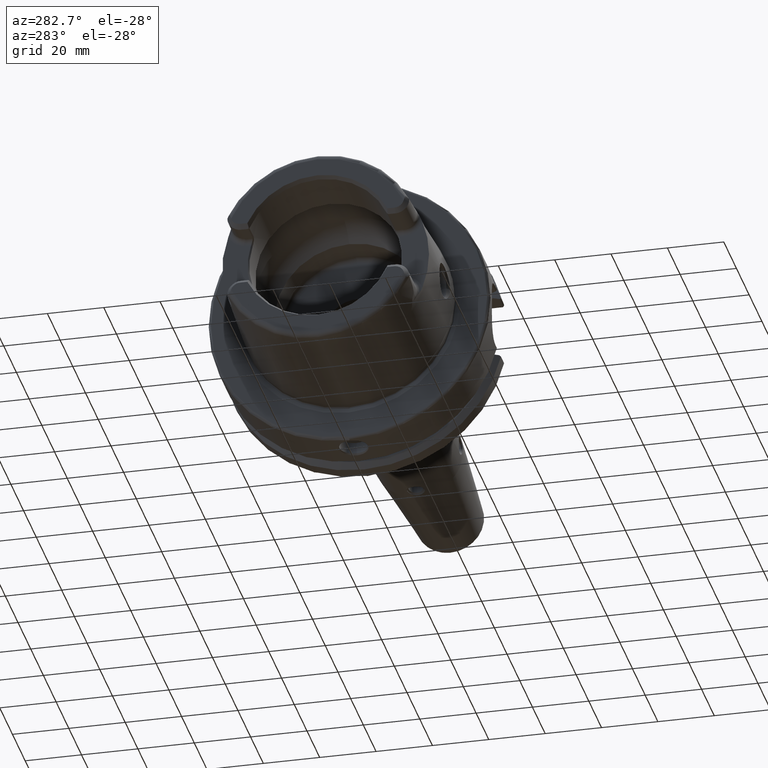
[diagram: clean part render]
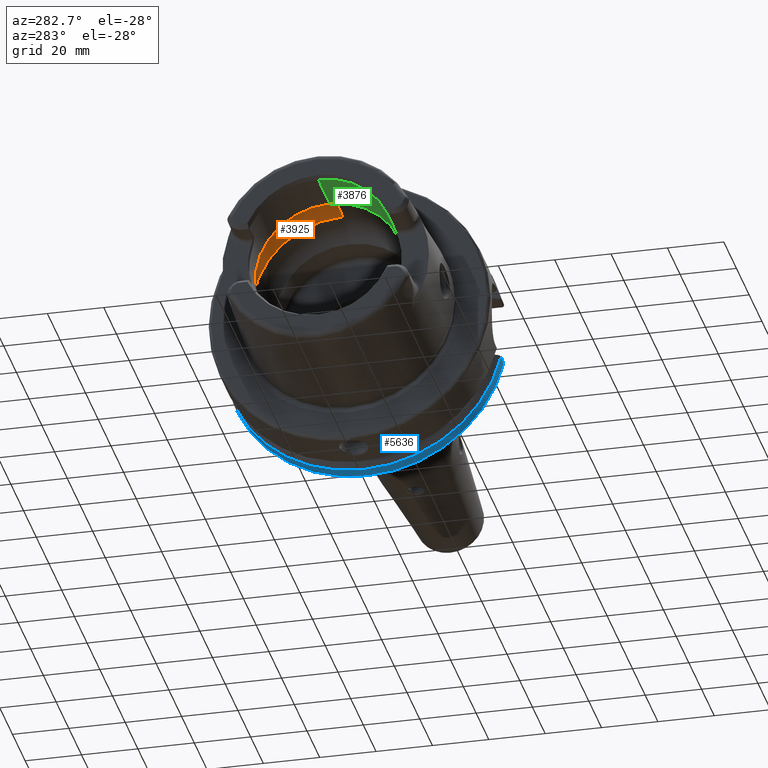
[diagram: same view with three faces highlighted in distinct colors, each labeled with its STEP entity id]
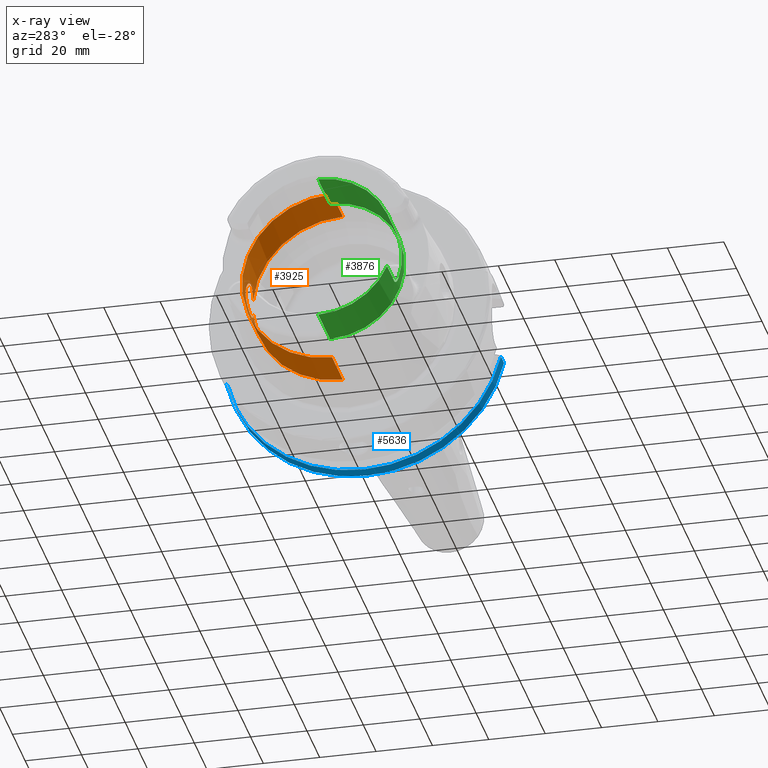
[diagram: x-ray of the same camera — body ghosted, the three highlighted faces saturated]
A machine part, auxiliary view with three faces highlighted in distinct colors.
The next image is the same camera in x-ray (body ghosted, the three faces saturated) — at least one of them is partly hidden behind the body in this view.
Their STEP definitions:

[orange] entity #3925 — the highlighted cylindrical surface (partial cylindrical patch) has radius 31.9778 mm, axis along (1, 0, 0).
#382=CARTESIAN_POINT('',(-2.684076579106E1,0.E0,0.E0));
#383=DIRECTION('',(-1.E0,0.E0,0.E0));
#384=DIRECTION('',(0.E0,0.E0,1.E0));
#385=AXIS2_PLACEMENT_3D('',#382,#383,#384);
#387=CARTESIAN_POINT('',(-2.1E1,3.1977801E1,0.E0));
#388=CARTESIAN_POINT('',(-2.1E1,3.1977801E1,-5.417772312E-1));
#389=CARTESIAN_POINT('',(-2.085889747286E1,3.195090834622E1,-1.583545797177E0));
#390=CARTESIAN_POINT('',(-2.023725409470E1,3.184030386695E1,-3.069746201830E0));
#391=CARTESIAN_POINT('',(-1.926191938699E1,3.169111022971E1,-4.320863728917E0));
#392=CARTESIAN_POINT('',(-1.798961731890E1,3.154165365022E1,-5.283070188300E0));
#393=CARTESIAN_POINT('',(-1.651487297174E1,3.143394164843E1,-5.876334387548E0));
#394=CARTESIAN_POINT('',(-1.493424229980E1,3.139619190134E1,-6.070440846821E0));
#395=CARTESIAN_POINT('',(-1.334891373360E1,3.144072336583E1,-5.840700834651E0));
#396=CARTESIAN_POINT('',(-1.188894756935E1,3.155371212765E1,-5.212842278393E0));
#397=CARTESIAN_POINT('',(-1.062992376873E1,3.170619527136E1,-4.210881161651E0));
#398=CARTESIAN_POINT('',(-1.000723024937E1,3.180316852419E1,-3.370873714428E0));
#399=CARTESIAN_POINT('',(-9.7468E0,3.184612797556E1,-2.898946318923E0));
#401=DIRECTION('',(1.E0,0.E0,-1.745808741324E-14));
#402=VECTOR('',#401,1.709396579106E1);
#403=CARTESIAN_POINT('',(-2.684076579106E1,0.E0,3.1977801E1));
#404=LINE('',#403,#402);
#405=CARTESIAN_POINT('',(-9.7468E0,3.184612797556E1,2.898946318923E0));
#406=CARTESIAN_POINT('',(-1.000666064348E1,3.180326248392E1,3.369841527789E0));
#407=CARTESIAN_POINT('',(-1.062794703943E1,3.170649384593E1,4.208563083822E0));
#408=CARTESIAN_POINT('',(-1.188520981617E1,3.155409890366E1,5.210537180797E0));
#409=CARTESIAN_POINT('',(-1.334413601817E1,3.144098557503E1,5.839320179684E0));
#410=CARTESIAN_POINT('',(-1.492899356570E1,3.139621616802E1,6.070315844148E0));
#411=CARTESIAN_POINT('',(-1.650963578406E1,3.143367382516E1,5.877736280835E0));
#412=CARTESIAN_POINT('',(-1.798472564763E1,3.154118880732E1,5.285769621539E0));
#413=CARTESIAN_POINT('',(-1.925790287009E1,3.169055352113E1,4.324875848298E0));
#414=CARTESIAN_POINT('',(-2.023498073259E1,3.183991504411E1,3.073836263336E0));
#415=CARTESIAN_POINT('',(-2.085824985905E1,3.195078295702E1,1.586660258782E0));
#416=CARTESIAN_POINT('',(-2.1E1,3.1977801E1,5.429929855954E-1));
#417=CARTESIAN_POINT('',(-2.1E1,3.1977801E1,0.E0));
#445=CARTESIAN_POINT('',(-9.7468E0,3.184612797556E1,-2.898946318923E0));
#459=CARTESIAN_POINT('',(-9.7468E0,0.E0,0.E0));
#460=DIRECTION('',(1.E0,0.E0,0.E0));
#461=DIRECTION('',(0.E0,9.958823615032E-1,9.065496151292E-2));
#462=AXIS2_PLACEMENT_3D('',#459,#460,#461);
#474=CARTESIAN_POINT('',(-9.7468E0,0.E0,0.E0));
#475=DIRECTION('',(1.E0,0.E0,0.E0));
#476=DIRECTION('',(0.E0,0.E0,-1.E0));
#477=AXIS2_PLACEMENT_3D('',#474,#475,#476);
#567=DIRECTION('',(1.E0,0.E0,1.745808741324E-14));
#568=VECTOR('',#567,1.709396579106E1);
#569=CARTESIAN_POINT('',(-2.684076579106E1,0.E0,-3.1977801E1));
#570=LINE('',#569,#568);
#3073=CARTESIAN_POINT('',(-9.7468E0,0.E0,-3.1977801E1));
#3074=VERTEX_POINT('',#3073);
#3075=CARTESIAN_POINT('',(-9.7468E0,0.E0,3.1977801E1));
#3076=VERTEX_POINT('',#3075);
#3085=VERTEX_POINT('',#445);
#3086=VERTEX_POINT('',#387);
#3093=VERTEX_POINT('',#405);
#3094=CARTESIAN_POINT('',(-2.684076579106E1,0.E0,-3.1977801E1));
#3095=VERTEX_POINT('',#3094);
#3096=CARTESIAN_POINT('',(-2.684076579106E1,0.E0,3.1977801E1));
#3097=VERTEX_POINT('',#3096);
#3905=CARTESIAN_POINT('',(0.E0,0.E0,0.E0));
#3906=DIRECTION('',(1.E0,0.E0,0.E0));
#3907=DIRECTION('',(0.E0,0.E0,1.E0));
#3908=AXIS2_PLACEMENT_3D('',#3905,#3906,#3907);
#3909=CYLINDRICAL_SURFACE('',#3908,3.1977801E1);
#3911=ORIENTED_EDGE('',*,*,#3910,.T.);
#3913=ORIENTED_EDGE('',*,*,#3912,.F.);
#3915=ORIENTED_EDGE('',*,*,#3914,.F.);
#3916=ORIENTED_EDGE('',*,*,#3899,.F.);
#3918=ORIENTED_EDGE('',*,*,#3917,.T.);
#3920=ORIENTED_EDGE('',*,*,#3919,.F.);
#3922=ORIENTED_EDGE('',*,*,#3921,.T.);
#3923=EDGE_LOOP('',(#3911,#3913,#3915,#3916,#3918,#3920,#3922));
#3924=FACE_OUTER_BOUND('',#3923,.F.);
#3925=ADVANCED_FACE('',(#3924),#3909,.F.);
#386=CIRCLE('',#385,3.1977801E1);
#400=B_SPLINE_CURVE_WITH_KNOTS('',3,(#387,#388,#389,#390,#391,#392,#393,#394,
#395,#396,#397,#398,#399),.UNSPECIFIED.,.F.,.F.,(4,1,1,1,1,1,1,1,1,1,4),(0.E0,
1.E-1,2.E-1,3.E-1,4.E-1,5.E-1,6.E-1,7.E-1,8.E-1,9.E-1,1.E0),.UNSPECIFIED.);
#418=B_SPLINE_CURVE_WITH_KNOTS('',3,(#405,#406,#407,#408,#409,#410,#411,#412,
#413,#414,#415,#416,#417),.UNSPECIFIED.,.F.,.F.,(4,1,1,1,1,1,1,1,1,1,4),(0.E0,
1.E-1,2.E-1,3.E-1,4.E-1,5.E-1,6.E-1,7.E-1,8.E-1,9.E-1,1.E0),.UNSPECIFIED.);
#463=CIRCLE('',#462,3.1977801E1);
#478=CIRCLE('',#477,3.1977801E1);
#3899=EDGE_CURVE('',#3097,#3095,#386,.T.);
#3910=EDGE_CURVE('',#3086,#3085,#400,.T.);
#3912=EDGE_CURVE('',#3074,#3085,#478,.T.);
#3914=EDGE_CURVE('',#3095,#3074,#570,.T.);
#3917=EDGE_CURVE('',#3097,#3076,#404,.T.);
#3919=EDGE_CURVE('',#3093,#3076,#463,.T.);
#3921=EDGE_CURVE('',#3093,#3086,#418,.T.);

[blue] entity #5636 — the highlighted cylindrical surface (partial cylindrical patch) has radius 50 mm, axis along (1, 0, 0).
#1952=CARTESIAN_POINT('',(2.8E1,0.E0,0.E0));
#1953=DIRECTION('',(-1.E0,0.E0,0.E0));
#1954=DIRECTION('',(0.E0,9.781062299454E-1,-2.081062299454E-1));
#1955=AXIS2_PLACEMENT_3D('',#1952,#1953,#1954);
#1957=CARTESIAN_POINT('',(2.8E1,0.E0,0.E0));
#1958=DIRECTION('',(-1.E0,0.E0,0.E0));
#1959=DIRECTION('',(0.E0,0.E0,-1.E0));
#1960=AXIS2_PLACEMENT_3D('',#1957,#1958,#1959);
#1962=DIRECTION('',(-1.E0,-8.372686127246E-14,9.793052523832E-14));
#1963=VECTOR('',#1962,4.752404735809E0);
#1964=CARTESIAN_POINT('',(2.8E1,4.890531149727E1,-1.040531149727E1));
#1965=LINE('',#1964,#1963);
#1966=DIRECTION('',(1.E0,-1.270854144314E-13,8.933357073267E-14));
#1967=VECTOR('',#1966,4.752404735809E0);
#1968=CARTESIAN_POINT('',(2.324759526419E1,-4.866725793949E1,
-1.146725793949E1));
#1969=LINE('',#1968,#1967);
#2090=CARTESIAN_POINT('',(2.324759526419E1,0.E0,0.E0));
#2091=DIRECTION('',(1.E0,0.E0,0.E0));
#2092=DIRECTION('',(0.E0,-9.733451587899E-1,-2.293451587898E-1));
#2093=AXIS2_PLACEMENT_3D('',#2090,#2091,#2092);
#2095=CARTESIAN_POINT('',(2.324759526419E1,0.E0,0.E0));
#2096=DIRECTION('',(1.E0,0.E0,0.E0));
#2097=DIRECTION('',(0.E0,0.E0,-1.E0));
#2098=AXIS2_PLACEMENT_3D('',#2095,#2096,#2097);
#3232=CARTESIAN_POINT('',(2.8E1,4.890531149727E1,-1.040531149727E1));
#3233=CARTESIAN_POINT('',(2.8E1,-2.842170943040E-14,-5.E1));
#3234=VERTEX_POINT('',#3232);
#3235=VERTEX_POINT('',#3233);
#3236=CARTESIAN_POINT('',(2.8E1,-4.866725793949E1,-1.146725793949E1));
#3237=VERTEX_POINT('',#3236);
#3238=CARTESIAN_POINT('',(2.324759526419E1,4.890531149727E1,-1.040531149727E1));
#3239=VERTEX_POINT('',#3238);
#3240=CARTESIAN_POINT('',(2.324759526419E1,-4.866725793949E1,
-1.146725793949E1));
#3241=CARTESIAN_POINT('',(2.324759526419E1,-2.842170943040E-14,-5.E1));
#3242=VERTEX_POINT('',#3240);
#3243=VERTEX_POINT('',#3241);
#5619=CARTESIAN_POINT('',(0.E0,0.E0,0.E0));
#5620=DIRECTION('',(1.E0,0.E0,0.E0));
#5621=DIRECTION('',(0.E0,0.E0,1.E0));
#5622=AXIS2_PLACEMENT_3D('',#5619,#5620,#5621);
#5623=CYLINDRICAL_SURFACE('',#5622,5.E1);
#5624=ORIENTED_EDGE('',*,*,#5605,.F.);
#5625=ORIENTED_EDGE('',*,*,#5603,.F.);
#5627=ORIENTED_EDGE('',*,*,#5626,.T.);
#5629=ORIENTED_EDGE('',*,*,#5628,.F.);
#5631=ORIENTED_EDGE('',*,*,#5630,.F.);
#5633=ORIENTED_EDGE('',*,*,#5632,.T.);
#5634=EDGE_LOOP('',(#5624,#5625,#5627,#5629,#5631,#5633));
#5635=FACE_OUTER_BOUND('',#5634,.F.);
#5636=ADVANCED_FACE('',(#5635),#5623,.T.);
#1956=CIRCLE('',#1955,5.E1);
#1961=CIRCLE('',#1960,5.E1);
#2094=CIRCLE('',#2093,5.E1);
#2099=CIRCLE('',#2098,5.E1);
#5603=EDGE_CURVE('',#3234,#3235,#1956,.T.);
#5605=EDGE_CURVE('',#3235,#3237,#1961,.T.);
#5626=EDGE_CURVE('',#3234,#3239,#1965,.T.);
#5628=EDGE_CURVE('',#3243,#3239,#2099,.T.);
#5630=EDGE_CURVE('',#3242,#3243,#2094,.T.);
#5632=EDGE_CURVE('',#3242,#3237,#1969,.T.);

[green] entity #3876 — the highlighted cylindrical surface (partial cylindrical patch) has radius 26.5 mm, axis along (1, 0, 0).
#273=DIRECTION('',(1.E0,0.E0,1.536588997424E-13));
#274=VECTOR('',#273,1.849662432703E1);
#275=CARTESIAN_POINT('',(-4.85E1,0.E0,2.65E1));
#276=LINE('',#275,#274);
#287=CARTESIAN_POINT('',(-4.85E1,3.375077994860E-14,1.625366508051E-13));
#288=DIRECTION('',(-1.E0,0.E0,0.E0));
#289=DIRECTION('',(0.E0,-1.937466251296E-9,-1.E0));
#290=AXIS2_PLACEMENT_3D('',#287,#288,#289);
#329=DIRECTION('',(1.E0,4.626316651380E-10,-1.559637832386E-13));
#330=VECTOR('',#329,1.849662432703E1);
#331=CARTESIAN_POINT('',(-4.85E1,-3.422853668879E-8,-2.65E1));
#332=LINE('',#331,#330);
#333=DIRECTION('',(1.E0,-2.675224312787E-11,-2.961820182686E-11));
#334=VECTOR('',#333,1.149999991623E1);
#335=CARTESIAN_POINT('',(-4.85E1,-2.440989828172E1,1.031537037026E1));
#336=LINE('',#335,#334);
#337=CARTESIAN_POINT('',(-3.700000008377E1,-2.440989828203E1,1.031537036992E1));
#338=CARTESIAN_POINT('',(-3.674734920115E1,-2.440916686493E1,1.031710116741E1));
#339=CARTESIAN_POINT('',(-3.626070752842E1,-2.443992538446E1,1.024494037721E1));
#340=CARTESIAN_POINT('',(-3.553212248677E1,-2.458315270915E1,9.899057859163E0));
#341=CARTESIAN_POINT('',(-3.496887481069E1,-2.479387262516E1,9.363177521563E0));
#342=CARTESIAN_POINT('',(-3.458858407847E1,-2.505338102701E1,8.648066362836E0));
#343=CARTESIAN_POINT('',(-3.449749378717E1,-2.522216632523E1,8.134746080861E0));
#344=CARTESIAN_POINT('',(-3.449999999554E1,-2.530699848840E1,7.861668241537E0));
#346=CARTESIAN_POINT('',(-3.449999999692E1,-2.530699865592E1,
-7.861667701257E0));
#347=CARTESIAN_POINT('',(-3.449758538861E1,-2.522674032779E1,
-8.120022219458E0));
#348=CARTESIAN_POINT('',(-3.457845798946E1,-2.506513123564E1,
-8.613698762781E0));
#349=CARTESIAN_POINT('',(-3.494762658574E1,-2.480374802734E1,
-9.337448497273E0));
#350=CARTESIAN_POINT('',(-3.551704926614E1,-2.458698405219E1,
-9.889746502433E0));
#351=CARTESIAN_POINT('',(-3.624917107532E1,-2.444084659122E1,
-1.024276437147E1));
#352=CARTESIAN_POINT('',(-3.674305339607E1,-2.440952652861E1,
-1.031625007311E1));
#353=CARTESIAN_POINT('',(-3.700000016303E1,-2.440989828210E1,
-1.031537036987E1));
#355=DIRECTION('',(-1.E0,3.167754026738E-11,-3.247906337785E-11));
#356=VECTOR('',#355,1.149999983697E1);
#357=CARTESIAN_POINT('',(-3.700000016303E1,-2.440989828210E1,
-1.031537036987E1));
#358=LINE('',#357,#356);
#359=CARTESIAN_POINT('',(-3.000337567298E1,0.E0,0.E0));
#360=DIRECTION('',(1.E0,0.E0,0.E0));
#361=DIRECTION('',(0.E0,0.E0,1.E0));
#362=AXIS2_PLACEMENT_3D('',#359,#360,#361);
#795=CARTESIAN_POINT('',(-3.45E1,-3.002043058586E-13,-2.535749388244E-13));
#796=DIRECTION('',(-1.E0,0.E0,0.E0));
#797=DIRECTION('',(0.E0,-9.549810800709E-1,-2.966667098052E-1));
#798=AXIS2_PLACEMENT_3D('',#795,#796,#797);
#940=CARTESIAN_POINT('',(-4.85E1,-2.664535259100E-14,0.E0));
#941=DIRECTION('',(-1.E0,0.E0,0.E0));
#942=DIRECTION('',(0.E0,-9.211282370500E-1,3.892592592466E-1));
#943=AXIS2_PLACEMENT_3D('',#940,#941,#942);
#3047=CARTESIAN_POINT('',(-4.85E1,-5.134281977348E-8,-2.65E1));
#3049=VERTEX_POINT('',#3047);
#3055=CARTESIAN_POINT('',(-4.85E1,0.E0,2.65E1));
#3056=VERTEX_POINT('',#3055);
#3057=CARTESIAN_POINT('',(-3.000337567297E1,0.E0,2.65E1));
#3058=VERTEX_POINT('',#3057);
#3059=CARTESIAN_POINT('',(-3.000337567298E1,-5.134282190858E-8,-2.65E1));
#3060=VERTEX_POINT('',#3059);
#3061=CARTESIAN_POINT('',(-4.85E1,-2.440989828184E1,-1.031537036999E1));
#3062=VERTEX_POINT('',#3061);
#3063=CARTESIAN_POINT('',(-4.85E1,-2.440989828182E1,1.031537037003E1));
#3064=VERTEX_POINT('',#3063);
#3065=CARTESIAN_POINT('',(-3.700000008377E1,-2.440989828203E1,
1.031537036992E1));
#3066=VERTEX_POINT('',#3065);
#3067=VERTEX_POINT('',#344);
#3068=CARTESIAN_POINT('',(-3.45E1,-2.530699862188E1,-7.861667809838E0));
#3069=VERTEX_POINT('',#3068);
#3070=VERTEX_POINT('',#353);
#3852=CARTESIAN_POINT('',(0.E0,0.E0,0.E0));
#3853=DIRECTION('',(1.E0,0.E0,0.E0));
#3854=DIRECTION('',(0.E0,0.E0,1.E0));
#3855=AXIS2_PLACEMENT_3D('',#3852,#3853,#3854);
#3856=CYLINDRICAL_SURFACE('',#3855,2.65E1);
#3857=ORIENTED_EDGE('',*,*,#3768,.F.);
#3858=ORIENTED_EDGE('',*,*,#3754,.T.);
#3860=ORIENTED_EDGE('',*,*,#3859,.F.);
#3861=ORIENTED_EDGE('',*,*,#3750,.F.);
#3863=ORIENTED_EDGE('',*,*,#3862,.F.);
#3865=ORIENTED_EDGE('',*,*,#3864,.T.);
#3867=ORIENTED_EDGE('',*,*,#3866,.T.);
#3869=ORIENTED_EDGE('',*,*,#3868,.F.);
#3871=ORIENTED_EDGE('',*,*,#3870,.T.);
#3873=ORIENTED_EDGE('',*,*,#3872,.T.);
#3874=EDGE_LOOP('',(#3857,#3858,#3860,#3861,#3863,#3865,#3867,#3869,#3871,
#3873));
#3875=FACE_OUTER_BOUND('',#3874,.F.);
#3876=ADVANCED_FACE('',(#3875),#3856,.F.);
#291=CIRCLE('',#290,2.65E1);
#345=B_SPLINE_CURVE_WITH_KNOTS('',3,(#337,#338,#339,#340,#341,#342,#343,#344),
.UNSPECIFIED.,.F.,.F.,(4,1,1,1,1,4),(0.E0,2.E-1,4.E-1,6.E-1,8.E-1,1.E0),
.UNSPECIFIED.);
#354=B_SPLINE_CURVE_WITH_KNOTS('',3,(#346,#347,#348,#349,#350,#351,#352,#353),
.UNSPECIFIED.,.F.,.F.,(4,1,1,1,1,4),(0.E0,2.E-1,4.E-1,6.E-1,8.E-1,1.E0),
.UNSPECIFIED.);
#363=CIRCLE('',#362,2.65E1);
#799=CIRCLE('',#798,2.65E1);
#944=CIRCLE('',#943,2.65E1);
#3750=EDGE_CURVE('',#3056,#3058,#276,.T.);
#3754=EDGE_CURVE('',#3049,#3060,#332,.T.);
#3768=EDGE_CURVE('',#3049,#3062,#291,.T.);
#3859=EDGE_CURVE('',#3058,#3060,#363,.T.);
#3862=EDGE_CURVE('',#3064,#3056,#944,.T.);
#3864=EDGE_CURVE('',#3064,#3066,#336,.T.);
#3866=EDGE_CURVE('',#3066,#3067,#345,.T.);
#3868=EDGE_CURVE('',#3069,#3067,#799,.T.);
#3870=EDGE_CURVE('',#3069,#3070,#354,.T.);
#3872=EDGE_CURVE('',#3070,#3062,#358,.T.);